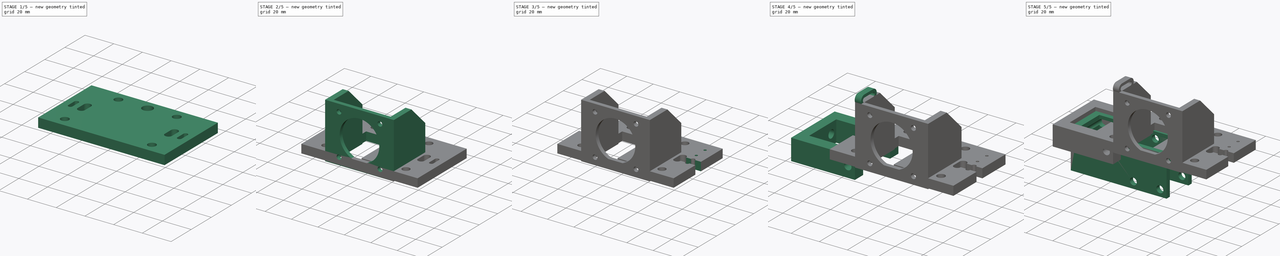
[diagram: build sequence overview — one tinted view per stage of 5, left to right]
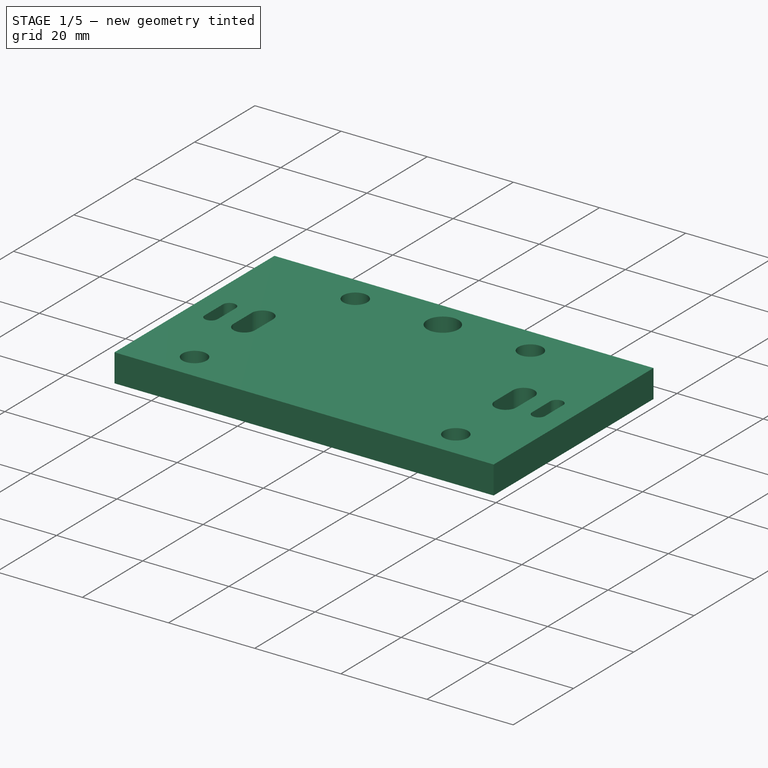
[diagram: stage 1 of 5 — iso view after this stage's code; geometry added in this stage tinted green]
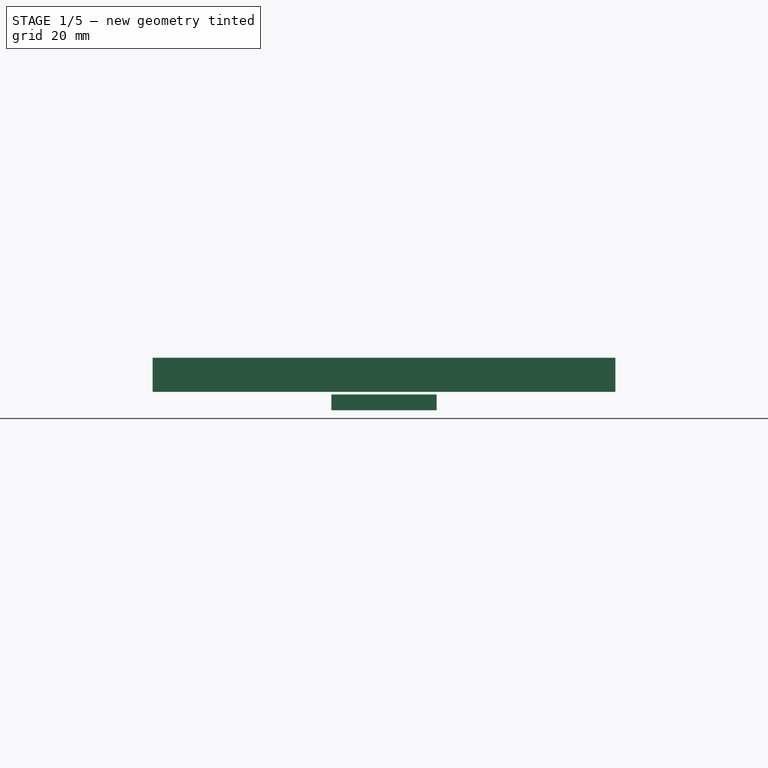
[diagram: stage 1 of 5 — front view after this stage's code; geometry added in this stage tinted green]
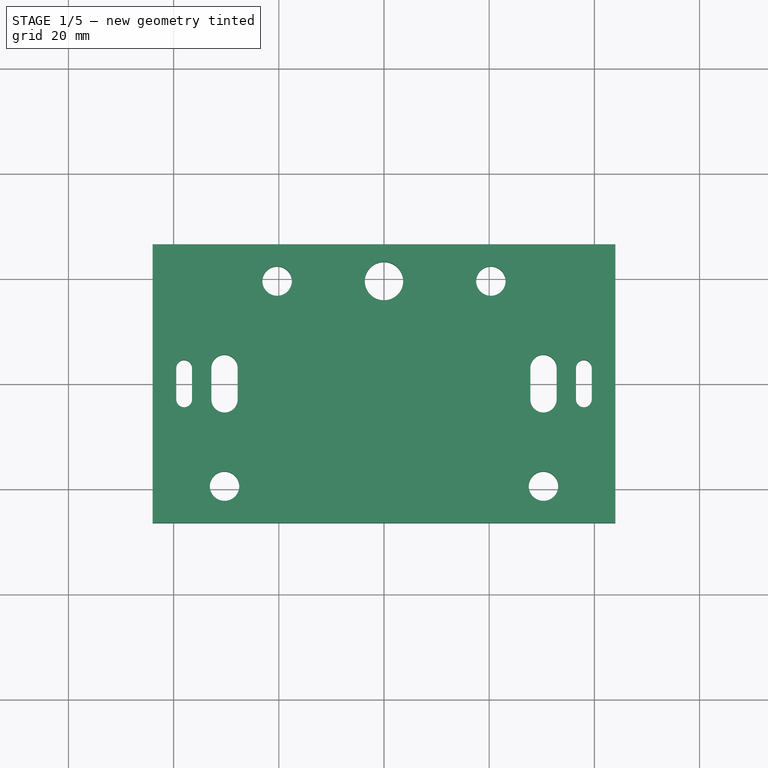
[diagram: stage 1 of 5 — top view after this stage's code; geometry added in this stage tinted green]
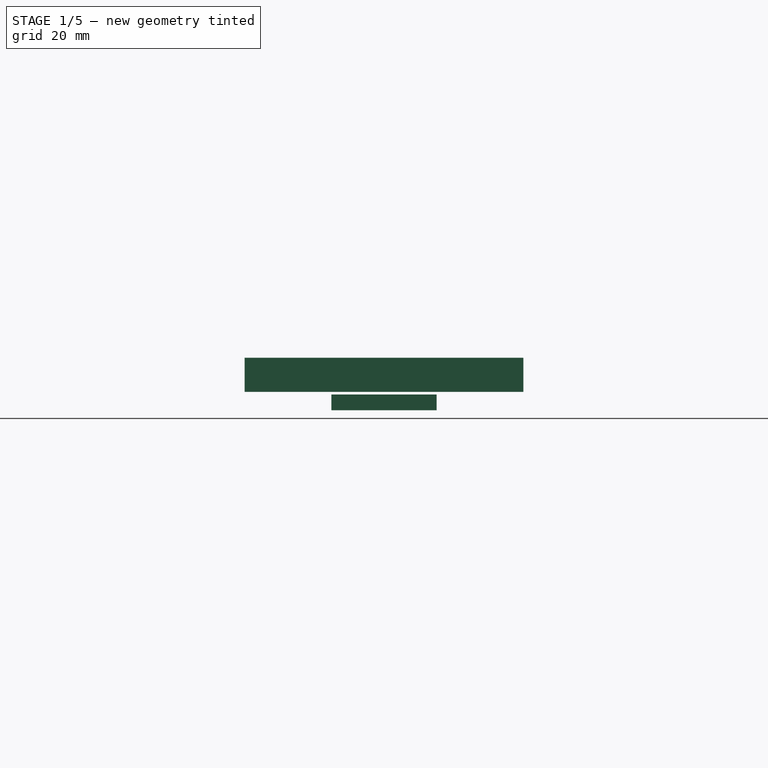
[diagram: stage 1 of 5 — right view after this stage's code; geometry added in this stage tinted green]
FCSTD DOCUMENT  (FreeCAD 0.20R25747 (Git))
Label: alt-x
License: All rights reserved
LicenseURL: http://en.wikipedia.org/wiki/All_rights_reserved
objects: Sketcher::SketchObject×16, PartDesign::Pad×6, PartDesign::Pocket×5, PartDesign::Hole×4, PartDesign::Body×4, App::Part×3, PartDesign::Chamfer×2
note: 54 computed .brp shape members not serialized (recipe doc carries the construction recipe); baked Part::Feature solids carry a one-line shape summary decoded from their .brp

FEATURE [Sketcher::SketchObject] Sketch  label="main_profile"
  AttachmentOffset = pos=(0,0,3.5) rot=(0,0,1;0rad)
  FullyConstrained = true
  MapMode = 5
  Placement = pos=(0,0,3.5) rot=(0,0,1;0rad)
  Support = -> [XY_Plane]
  sketch-geometry (26):
    g0: LineSegment StartX=44 StartY=-26.5 StartZ=0 EndX=-44 EndY=-26.5 EndZ=0
    g1: LineSegment StartX=-44 StartY=-26.5 StartZ=0 EndX=-44 EndY=26.5 EndZ=0
    g2: LineSegment StartX=-44 StartY=26.5 StartZ=0 EndX=44 EndY=26.5 EndZ=0
    g3: Circle CenterX=20.32 CenterY=19.5 CenterZ=0 NormalX=0 NormalY=0 NormalZ=1 AngleXU=0 Radius=2.8
    g4: Circle CenterX=-30.32 CenterY=-19.5 CenterZ=0 NormalX=0 NormalY=0 NormalZ=1 AngleXU=0 Radius=2.8
    g5: Circle CenterX=30.32 CenterY=-19.5 CenterZ=0 NormalX=0 NormalY=0 NormalZ=1 AngleXU=0 Radius=2.8
    g6: ArcOfCircle CenterX=-38 CenterY=3 CenterZ=0 NormalX=0 NormalY=0 NormalZ=1 AngleXU=0 Radius=1.5 StartAngle=0 EndAngle=3.14159
    g7: ArcOfCircle CenterX=-38 CenterY=-3 CenterZ=0 NormalX=0 NormalY=0 NormalZ=1 AngleXU=0 Radius=1.5 StartAngle=3.14159 EndAngle=6.28319
    g8: LineSegment StartX=-39.5 StartY=3 StartZ=0 EndX=-39.5 EndY=-3 EndZ=0
    g9: LineSegment StartX=-36.5 StartY=-3 StartZ=0 EndX=-36.5 EndY=3 EndZ=0
    g10: ArcOfCircle CenterX=38 CenterY=3 CenterZ=0 NormalX=0 NormalY=0 NormalZ=1 AngleXU=0 Radius=1.5 StartAngle=0 EndAngle=3.14159
    g11: ArcOfCircle CenterX=38 CenterY=-3 CenterZ=0 NormalX=0 NormalY=0 NormalZ=1 AngleXU=0 Radius=1.5 StartAngle=3.14159 EndAngle=6.28319
    g12: LineSegment StartX=36.5 StartY=3 StartZ=0 EndX=36.5 EndY=-3 EndZ=0
    g13: LineSegment StartX=39.5 StartY=-3 StartZ=0 EndX=39.5 EndY=3 EndZ=0
    g14: GeomPoint X=30.32 Y=19.5 Z=0
    g15: Circle CenterX=-20.32 CenterY=19.5 CenterZ=0 NormalX=0 NormalY=0 NormalZ=1 AngleXU=0 Radius=2.8
    g16: ArcOfCircle CenterX=-30.32 CenterY=3 CenterZ=0 NormalX=0 NormalY=0 NormalZ=1 AngleXU=0 Radius=2.5 StartAngle=1e-16 EndAngle=3.14159
    g17: ArcOfCircle CenterX=-30.32 CenterY=-3 CenterZ=0 NormalX=0 NormalY=0 NormalZ=1 AngleXU=0 Radius=2.5 StartAngle=3.14159 EndAngle=6.28319
    g18: LineSegment StartX=-32.82 StartY=3 StartZ=0 EndX=-32.82 EndY=-3 EndZ=0
    g19: LineSegment StartX=-27.82 StartY=-3 StartZ=0 EndX=-27.82 EndY=3 EndZ=0
    g20: ArcOfCircle CenterX=30.32 CenterY=3 CenterZ=0 NormalX=0 NormalY=0 NormalZ=1 AngleXU=0 Radius=2.5 StartAngle=0 EndAngle=3.14159
    g21: ArcOfCircle CenterX=30.32 CenterY=-3 CenterZ=0 NormalX=0 NormalY=0 NormalZ=1 AngleXU=0 Radius=2.5 StartAngle=3.14159 EndAngle=6.28319
    g22: LineSegment StartX=27.82 StartY=3 StartZ=0 EndX=27.82 EndY=-3 EndZ=0
    g23: LineSegment StartX=32.82 StartY=-3 StartZ=0 EndX=32.82 EndY=3 EndZ=0
    g24: Circle CenterX=0 CenterY=19.5 CenterZ=0 NormalX=0 NormalY=0 NormalZ=1 AngleXU=0 Radius=3.65
    g25: LineSegment StartX=44 StartY=26.5 StartZ=0 EndX=44 EndY=-26.5 EndZ=0
  constraints (60):
    c: Coincident(g0,g1)
    c: Coincident(g1,g2)
    c: Horizontal(g0)
    c: Symmetric(g2,g1,g-2)
    c: Symmetric(g0,g1,g-1)
    c: DistanceX(g0,g0) = 88
    c: Equal(g4,g5)
    c: Diameter(g4) = 5.6
    c: DistanceY(g1,g1) = 53
    c: DistanceY(g5,g3) = 39
    c: Tangent(g6,g8) = -1.5708
    c: Tangent(g8,g7) = -1.5708
    c: Tangent(g7,g9) = -1.5708
    c: Tangent(g9,g6) = -1.5708
    c: Equal(g6,g7)
    c: Tangent(g10,g12) = -1.5708
    c: Tangent(g12,g11) = -1.5708
    c: Tangent(g11,g13) = -1.5708
    c: Tangent(g13,g10) = -1.5708
    c: Equal(g10,g11)
    c: Symmetric(g10,g11,g-1)
    c: DistanceY(g11,g10) = 6
    c: Symmetric(g6,g7,g-1)
    c: DistanceX(g6,g6) = 3
    c: DistanceX(g10,g10) = 3  'slot_diam'
    c: Symmetric(g5,g14,g-1)
    c: Horizontal(g3,g14)
    c: Symmetric(g5,g4,g-2)
    c: Symmetric(g15,g3,g-2)
    c: Equal(g15,g3)
    c: DistanceX(g15,g3) = 40.64
    c: Tangent(g16,g18) = -1.5708
    c: Tangent(g18,g17) = -1.5708
    c: Tangent(g17,g19) = -1.5708
    c: Tangent(g19,g16) = -1.5708
    c: Equal(g16,g17)
    c: Tangent(g20,g22) = -1.5708
    c: Tangent(g22,g21) = -1.5708
    c: Tangent(g21,g23) = -1.5708
    c: Tangent(g23,g20) = -1.5708
    c: Horizontal(g16,g6)
    c: Symmetric(g16,g20,g-2)
    c: Vertical(g20,g21)
    c: Equal(g12,g23)
    c: Equal(g23,g19)
    c: Equal(g20,g21)
    c: Symmetric(g6,g10,g-2)
    c: Vertical(g16,g17)
    c: Horizontal(g24,g15)
    c: PointOnObject(g24,g-2)
    c: DistanceX(g4,g5) = 60.64
    c: Equal(g4,g15)
    c: Diameter(g24) = 7.3
    c: DistanceX(g20,g10) = 3.68
    c: DistanceX(g20,g20) = 5
    c: DistanceX(g17,g17) = 5
    c: DistanceX(g16,g20) = 60.64
    c: Coincident(g0,g25)
    c: Coincident(g2,g25)
    c: Vertical(g25)
FEATURE [PartDesign::Pad] Pad
  Direction = (0,0,1)
  Length = 6.5
  Length2 = 100
  Profile = -> Sketch
  Type = 0
FEATURE [PartDesign::Body] Body
  Group = -> [Sketch,Pad,Sketch001,Pad001,Sketch002,Pocket,Chamfer001,Sketch003,Hole,Sketch004,Pocket001,Chamfer003,Sketch012,Hole002,Sketch013,Pad004]
  Origin = -> Origin
  Tip = -> Pad004
FEATURE [App::Part] Part  label="carriage"
  Group = -> [Body]
  Origin = -> Origin001
FEATURE [Sketcher::SketchObject] Sketch016
  FullyConstrained = true
  MapMode = 5
  Support = -> [XY_Plane008]
  sketch-geometry (5):
    g0: LineSegment StartX=10 StartY=-10 StartZ=0 EndX=-10 EndY=-10 EndZ=0
    g1: LineSegment StartX=-10 StartY=-10 StartZ=0 EndX=-10 EndY=10 EndZ=0
    g2: LineSegment StartX=-10 StartY=10 StartZ=0 EndX=10 EndY=10 EndZ=0
    g3: LineSegment StartX=10 StartY=10 StartZ=0 EndX=10 EndY=-10 EndZ=0
    g4: Circle CenterX=0 CenterY=0 CenterZ=0 NormalX=0 NormalY=0 NormalZ=1 AngleXU=0 Radius=2.6
  constraints (12):
    c: Coincident(g0,g1)
    c: Coincident(g1,g2)
    c: Coincident(g2,g3)
    c: Coincident(g3,g0)
    c: Horizontal(g0)
    c: Vertical(g1)
    c: Coincident(g4,g-1)
    c: Diameter(g4) = 5.2
    c: Symmetric(g0,g2,g-1)
    c: Symmetric(g1,g2,g-2)
    c: DistanceX(g2,g2) = 20
    c: DistanceY(g3,g3) = 20
FEATURE [PartDesign::Pad] Pad006
  Direction = (0,0,1)
  Length = 3
  Length2 = 100
  Profile = -> Sketch016
  Type = 0
FEATURE [Sketcher::SketchObject] Sketch017
  ExternalGeometry = -> [Pad006]
  FullyConstrained = false
  MapMode = 5
  Support = -> [XY_Plane008]
  sketch-geometry (3):
    g0: Circle CenterX=4.75 CenterY=5 CenterZ=0 NormalX=0 NormalY=0 NormalZ=1 AngleXU=0 Radius=0.9
    g1: Circle CenterX=-4.75 CenterY=5 CenterZ=0 NormalX=0 NormalY=0 NormalZ=1 AngleXU=0 Radius=0.9
    g2: LineSegment StartX=15.5176 StartY=26.4222 StartZ=0 EndX=5.3176 EndY=26.4222 EndZ=0
  constraints (7):
    c: Diameter(g1) = 1.8
    c: Equal(g0,g1)
    c: Horizontal(g2)
    c: DistanceX(g2,g2) = 10.2
    c: Distance(g1,g0) = 9.5
    c: Symmetric(g0,g1,g-2)
    c: DistanceY(g0,g-3) = 5
FEATURE [PartDesign::Hole] Hole004
  BaseFeature = -> Pad006
  CustomThreadClearance = 0
  Depth = 25
  DepthType = 1
  Diameter = 2.1
  DrillForDepth = false
  DrillPoint = 1
  DrillPointAngle = 118
  HoleCutCountersinkAngle = 90
  HoleCutCustomValues = false
  HoleCutDepth = 0
  HoleCutDiameter = 6.1
  HoleCutType = 0
  ModelThread = false
  Profile = -> Sketch017
  Reversed = true
  Tapered = false
  TaperedAngle = 90
  ThreadClass = 0
  ThreadDepth = 57.4547
  ThreadDepthType = 0
  ThreadDirection = 0
  ThreadFit = 0
  ThreadSize = 5
  ThreadType = 1
  Threaded = false
  UseCustomThreadClearance = false
FEATURE [PartDesign::Body] Body004  label="endstop"
  Group = -> [Sketch016,Sketch017,Pad006,Hole004]
  Origin = -> Origin008
  Tip = -> Hole004
FEATURE [App::Part] Part003  label="z-endstop"
  Group = -> [Body004]
  Origin = -> Origin007
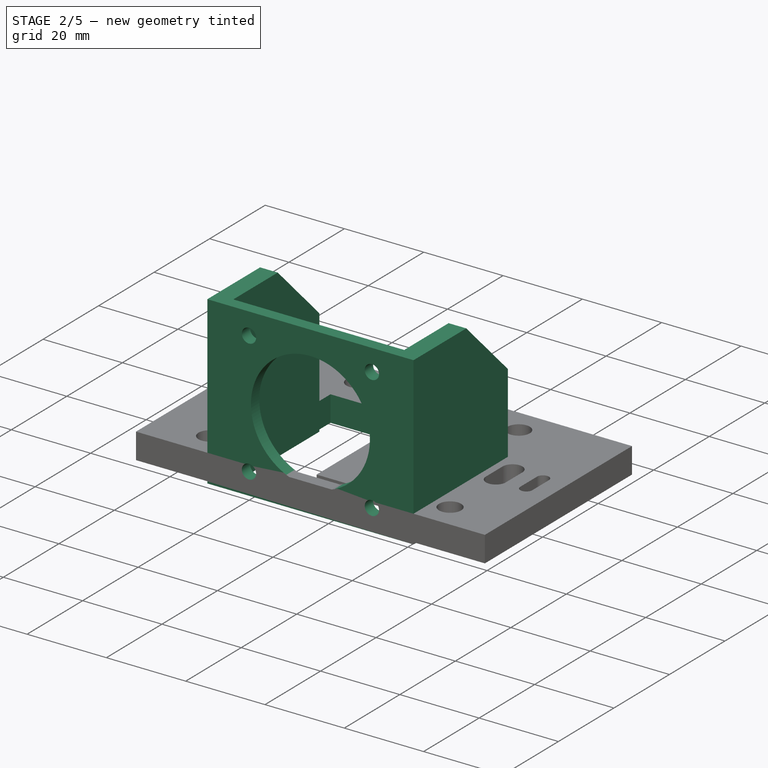
[diagram: stage 2 of 5 — iso view after this stage's code; geometry added in this stage tinted green]
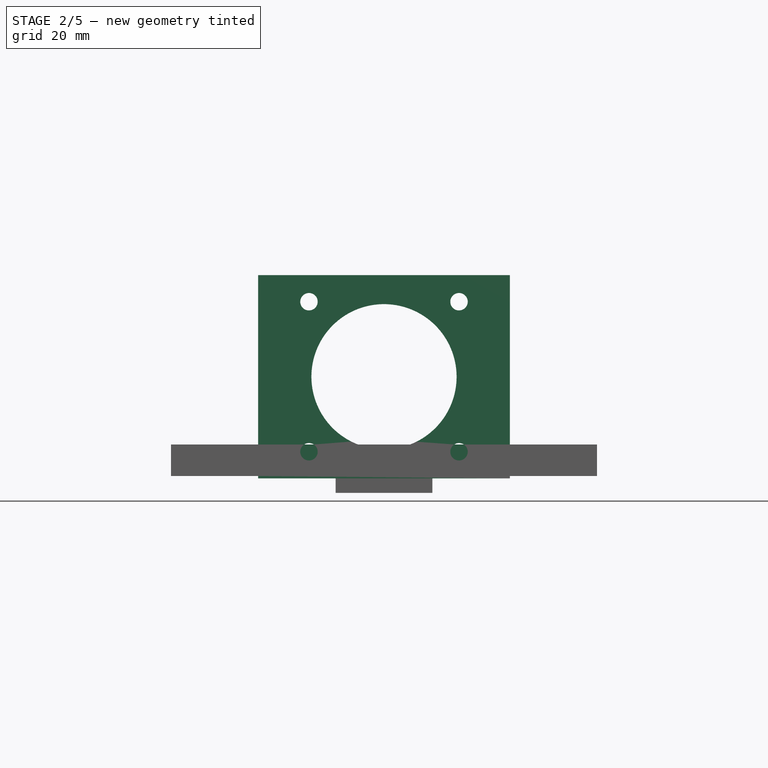
[diagram: stage 2 of 5 — front view after this stage's code; geometry added in this stage tinted green]
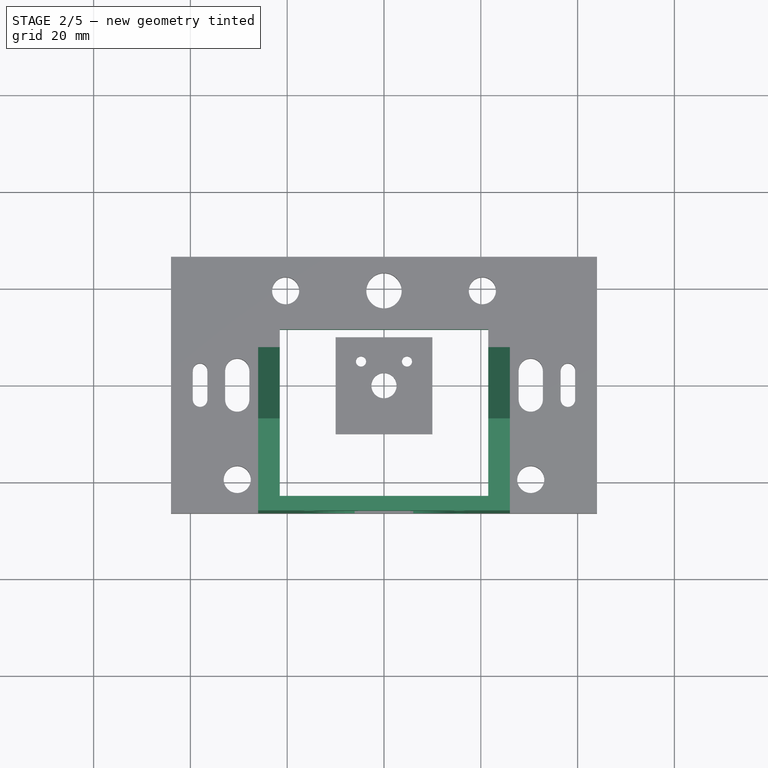
[diagram: stage 2 of 5 — top view after this stage's code; geometry added in this stage tinted green]
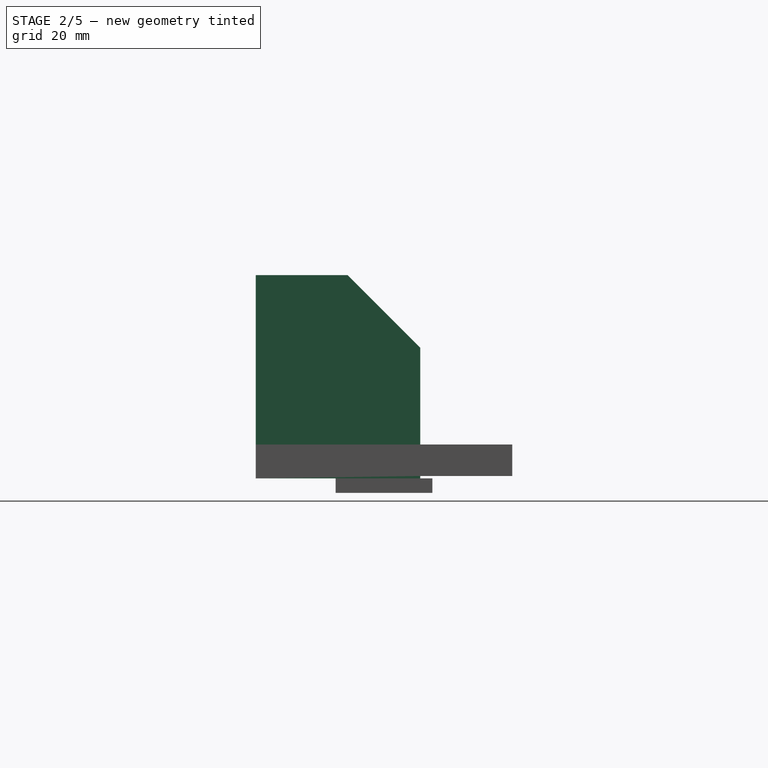
[diagram: stage 2 of 5 — right view after this stage's code; geometry added in this stage tinted green]
FEATURE [Sketcher::SketchObject] Sketch001  label="motor_mount"
  AttachmentOffset = pos=(0,24,26.5) rot=(0,0,1;0rad)
  FullyConstrained = true
  MapMode = 5
  Placement = pos=(0,-26.5,24) rot=(1,0,0;1.5708rad)
  Support = -> [XZ_Plane]
  sketch-geometry (9):
    g0: LineSegment StartX=-26 StartY=-21 StartZ=0 EndX=26 EndY=-21 EndZ=0
    g1: LineSegment StartX=26 StartY=-21 StartZ=0 EndX=26 EndY=21 EndZ=0
    g2: LineSegment StartX=26 StartY=21 StartZ=0 EndX=-26 EndY=21 EndZ=0
    g3: LineSegment StartX=-26 StartY=21 StartZ=0 EndX=-26 EndY=-21 EndZ=0
    g4: Circle CenterX=0 CenterY=0 CenterZ=0 NormalX=0 NormalY=0 NormalZ=1 AngleXU=0 Radius=15
    g5: Circle CenterX=-15.5 CenterY=15.5 CenterZ=0 NormalX=0 NormalY=0 NormalZ=1 AngleXU=0 Radius=1.75
    g6: Circle CenterX=-15.5 CenterY=-15.5 CenterZ=0 NormalX=0 NormalY=0 NormalZ=1 AngleXU=0 Radius=1.75
    g7: Circle CenterX=15.5 CenterY=-15.5 CenterZ=0 NormalX=0 NormalY=0 NormalZ=1 AngleXU=0 Radius=1.75
    g8: Circle CenterX=15.5 CenterY=15.5 CenterZ=0 NormalX=0 NormalY=0 NormalZ=1 AngleXU=0 Radius=1.75
  constraints (21):
    c: Coincident(g0,g1)
    c: Coincident(g1,g2)
    c: Coincident(g2,g3)
    c: Coincident(g3,g0)
    c: Horizontal(g0)
    c: Vertical(g1)
    c: DistanceX(g2,g2) = 52
    c: DistanceY(g1,g1) = 42
    c: Symmetric(g2,g0,g-1)
    c: Symmetric(g2,g1,g-2)
    c: Coincident(g4,g-1)
    c: Diameter(g4) = 30
    c: Symmetric(g8,g7,g-1)
    c: Symmetric(g8,g5,g-2)
    c: Diameter(g8) = 3.5
    c: Equal(g8,g5)
    c: Equal(g5,g6)
    c: Equal(g6,g7)
    c: Symmetric(g5,g6,g-1)
    c: DistanceY(g6,g5) = 31
    c: DistanceX(g6,g7) = 31
FEATURE [PartDesign::Pad] Pad001
  BaseFeature = -> Pad
  Direction = (0,-1,-2e-16)
  Length = 34
  Length2 = 100
  Profile = -> Sketch001
  Reversed = true
  Type = 0
FEATURE [Sketcher::SketchObject] Sketch002  label="motor_pocket"
  AttachmentOffset = pos=(0,24,23.5) rot=(0,0,1;0rad)
  FullyConstrained = true
  MapMode = 5
  Placement = pos=(0,-23.5,24) rot=(1,0,0;1.5708rad)
  Support = -> [XZ_Plane]
  expr: .AttachmentOffset.Base.y = <<motor_mount>>.AttachmentOffset.Base.y
  expr: .Constraints.motor_dimension = 42.6mm
  expr: .Constraints.motor_width = .Constraints.motor_dimension + 0.5mm
  expr: .AttachmentOffset.Base.z = <<motor_mount>>.AttachmentOffset.Base.z - 3mm
  sketch-geometry (4):
    g0: LineSegment StartX=21.55 StartY=-21.3 StartZ=0 EndX=-21.55 EndY=-21.3 EndZ=0
    g1: LineSegment StartX=-21.55 StartY=-21.3 StartZ=0 EndX=-21.55 EndY=21.3 EndZ=0
    g2: LineSegment StartX=-21.55 StartY=21.3 StartZ=0 EndX=21.55 EndY=21.3 EndZ=0
    g3: LineSegment StartX=21.55 StartY=21.3 StartZ=0 EndX=21.55 EndY=-21.3 EndZ=0
  constraints (10):
    c: Coincident(g0,g1)
    c: Coincident(g1,g2)
    c: Coincident(g2,g3)
    c: Coincident(g3,g0)
    c: Horizontal(g0)
    c: Vertical(g3)
    c: Symmetric(g2,g1,g-2)
    c: Symmetric(g1,g0,g-1)
    c: DistanceX(g2,g2) = 43.1  'motor_width'
    c: DistanceY(g1,g1) = 42.6  'motor_dimension'
FEATURE [PartDesign::Pocket] Pocket
  BaseFeature = -> Pad001
  Length = 35
  Length2 = 100
  Profile = -> Sketch002
  Type = 0
FEATURE [PartDesign::Chamfer] Chamfer001
  Angle = 45
  Base = -> Pocket [Edge139,Edge140]
  BaseFeature = -> Pocket
  ChamferType = 0
  FlipDirection = false
  Size = 15
  Size2 = 1
  SupportTransform = false
FEATURE [Sketcher::SketchObject] Sketch003  label="motor_mount001"
  AttachmentOffset = pos=(0,24,26.5) rot=(0,0,1;0rad)
  FullyConstrained = true
  MapMode = 5
  Placement = pos=(0,-26.5,24) rot=(1,0,0;1.5708rad)
  Support = -> [XZ_Plane]
  sketch-geometry (9):
    g0: LineSegment StartX=-27 StartY=-21 StartZ=0 EndX=27 EndY=-21 EndZ=0
    g1: LineSegment StartX=27 StartY=-21 StartZ=0 EndX=27 EndY=21 EndZ=0
    g2: LineSegment StartX=27 StartY=21 StartZ=0 EndX=-27 EndY=21 EndZ=0
    g3: LineSegment StartX=-27 StartY=21 StartZ=0 EndX=-27 EndY=-21 EndZ=0
    g4: Circle CenterX=0 CenterY=0 CenterZ=0 NormalX=0 NormalY=0 NormalZ=1 AngleXU=0 Radius=15
    g5: Circle CenterX=-15.5 CenterY=15.5 CenterZ=0 NormalX=0 NormalY=0 NormalZ=1 AngleXU=0 Radius=1.75
    g6: Circle CenterX=-15.5 CenterY=-15.5 CenterZ=0 NormalX=0 NormalY=0 NormalZ=1 AngleXU=0 Radius=1.75
    g7: Circle CenterX=15.5 CenterY=-15.5 CenterZ=0 NormalX=0 NormalY=0 NormalZ=1 AngleXU=0 Radius=1.75
    g8: Circle CenterX=15.5 CenterY=15.5 CenterZ=0 NormalX=0 NormalY=0 NormalZ=1 AngleXU=0 Radius=1.75
  constraints (21):
    c: Coincident(g0,g1)
    c: Coincident(g1,g2)
    c: Coincident(g2,g3)
    c: Coincident(g3,g0)
    c: Horizontal(g0)
    c: Vertical(g1)
    c: DistanceX(g2,g2) = 54
    c: DistanceY(g1,g1) = 42
    c: Symmetric(g2,g0,g-1)
    c: Symmetric(g2,g1,g-2)
    c: Coincident(g4,g-1)
    c: Diameter(g4) = 30
    c: Symmetric(g8,g7,g-1)
    c: Symmetric(g8,g5,g-2)
    c: Diameter(g8) = 3.5
    c: Equal(g8,g5)
    c: Equal(g5,g6)
    c: Equal(g6,g7)
    c: Symmetric(g5,g6,g-1)
    c: DistanceY(g6,g5) = 31
    c: DistanceX(g6,g7) = 31
FEATURE [PartDesign::Hole] Hole
  BaseFeature = -> Chamfer001
  CustomThreadClearance = 0
  Depth = 25
  DepthType = 0
  Diameter = 3.6
  DrillForDepth = false
  DrillPoint = 1
  DrillPointAngle = 118
  HoleCutCountersinkAngle = 90
  HoleCutCustomValues = false
  HoleCutDepth = 0
  HoleCutDiameter = 6.1
  HoleCutType = 0
  ModelThread = false
  Profile = -> Sketch003
  Tapered = false
  TaperedAngle = 90
  ThreadClass = 0
  ThreadDepth = 25
  ThreadDepthType = 0
  ThreadDirection = 0
  ThreadFit = 2
  ThreadSize = 9
  ThreadType = 2
  Threaded = false
  UseCustomThreadClearance = false
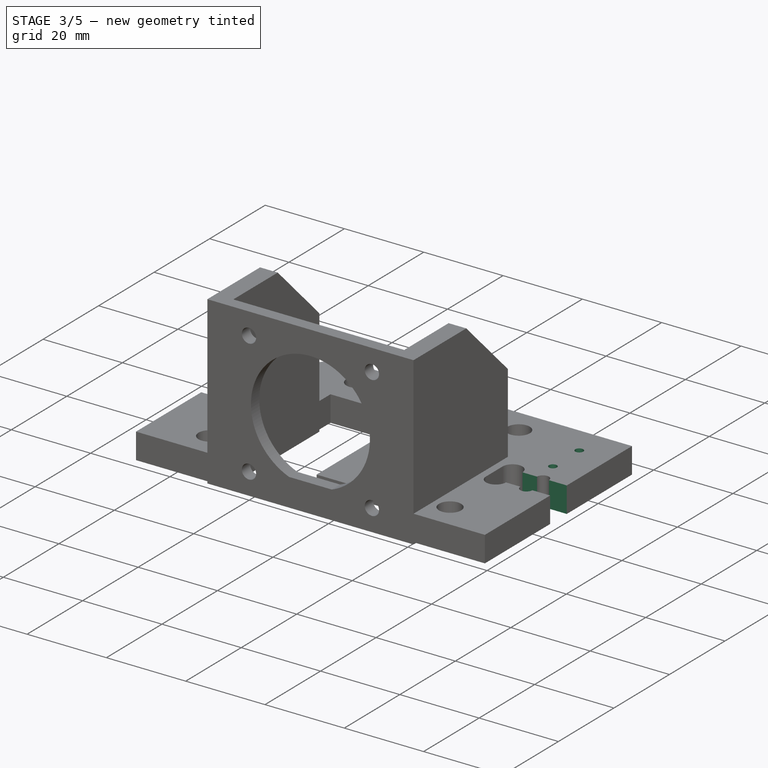
[diagram: stage 3 of 5 — iso view after this stage's code; geometry added in this stage tinted green]
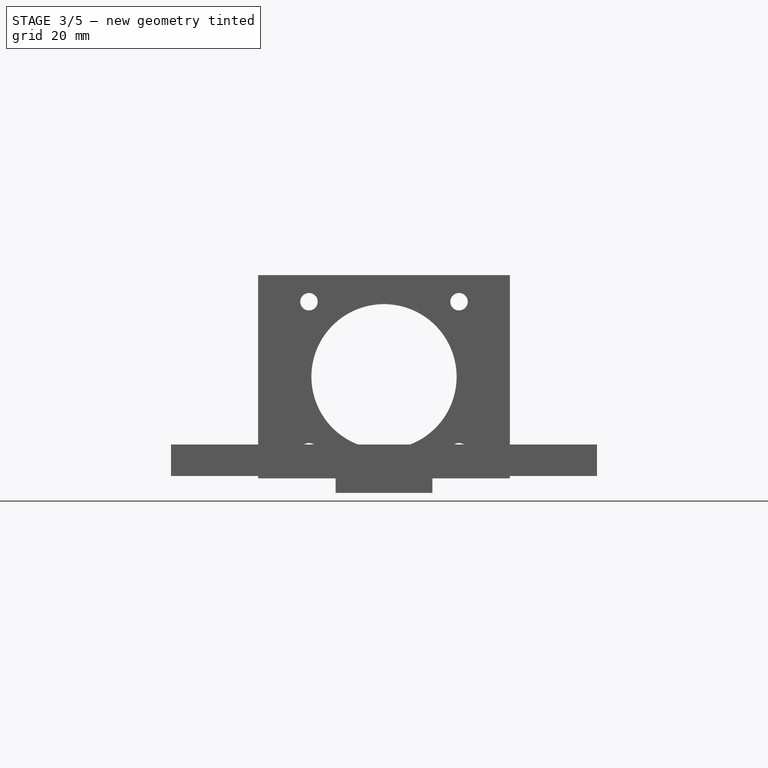
[diagram: stage 3 of 5 — front view after this stage's code; geometry added in this stage tinted green]
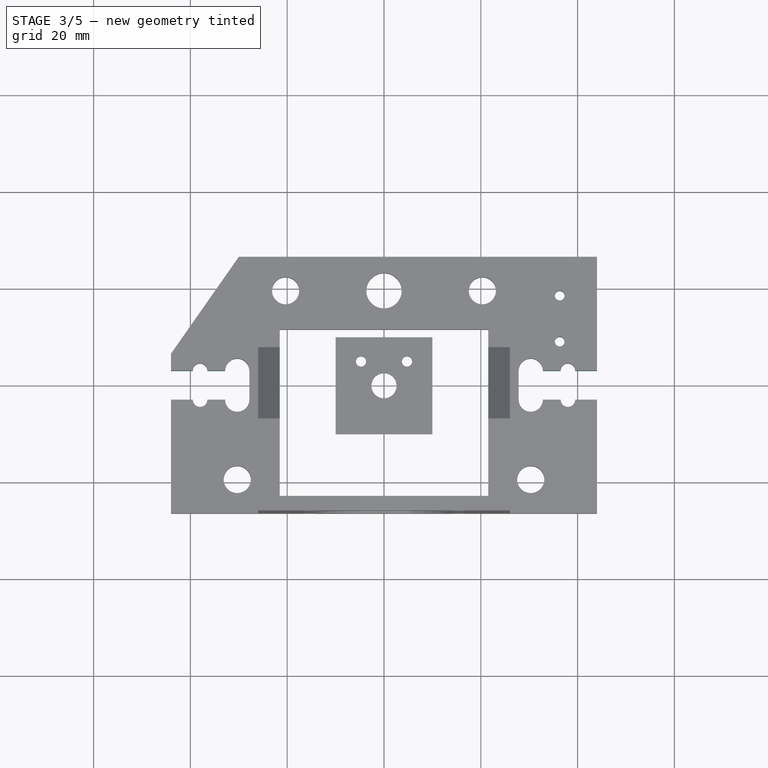
[diagram: stage 3 of 5 — top view after this stage's code; geometry added in this stage tinted green]
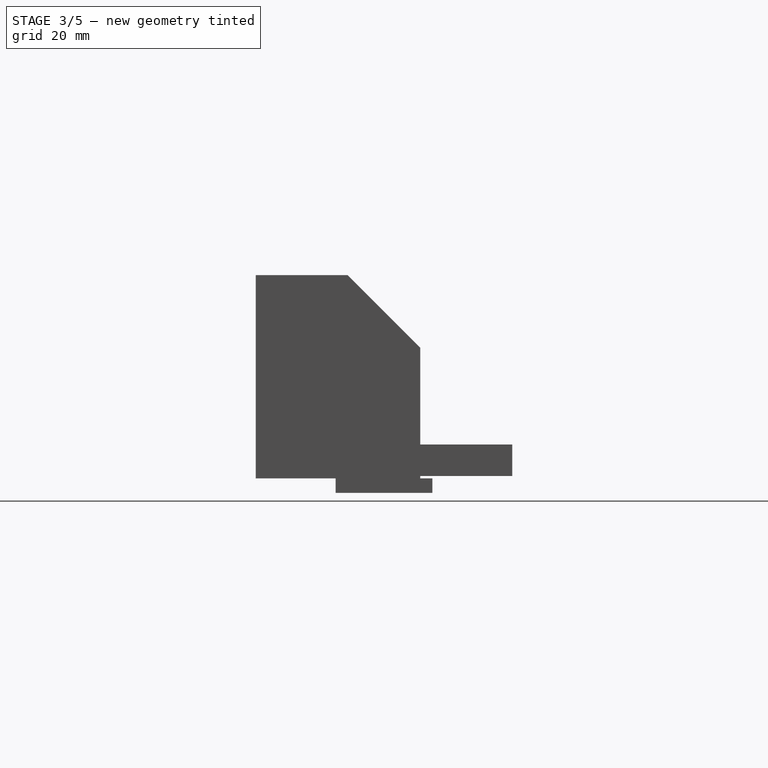
[diagram: stage 3 of 5 — right view after this stage's code; geometry added in this stage tinted green]
FEATURE [Sketcher::SketchObject] Sketch004
  AttachmentOffset = pos=(0,0,11) rot=(0,0,1;0rad)
  FullyConstrained = false
  MapMode = 5
  Placement = pos=(0,0,11) rot=(0,0,1;0rad)
  Support = -> [XY_Plane]
  sketch-geometry (8):
    g0: LineSegment StartX=-44 StartY=3 StartZ=0 EndX=-27.82 EndY=3 EndZ=0
    g1: LineSegment StartX=-27.82 StartY=3 StartZ=0 EndX=-27.82 EndY=-3 EndZ=0
    g2: LineSegment StartX=-27.82 StartY=-3 StartZ=0 EndX=-44 EndY=-3 EndZ=0
    g3: LineSegment StartX=-44 StartY=-3 StartZ=0 EndX=-44 EndY=3 EndZ=0
    g4: LineSegment StartX=27.82 StartY=3 StartZ=0 EndX=44 EndY=3 EndZ=0
    g5: LineSegment StartX=44 StartY=3 StartZ=0 EndX=44 EndY=-3 EndZ=0
    g6: LineSegment StartX=44 StartY=-3 StartZ=0 EndX=27.82 EndY=-3 EndZ=0
    g7: LineSegment StartX=27.82 StartY=-3 StartZ=0 EndX=27.82 EndY=3 EndZ=0
  constraints (14):
    c: Coincident(g4,g7)
    c: Coincident(g6,g7)
    c: Horizontal(g4)
    c: Horizontal(g6)
    c: Coincident(g5,g6)
    c: Vertical(g5)
    c: Coincident(g4,g5)
    c: Coincident(g1,g2)
    c: Coincident(g0,g1)
    c: Coincident(g0,g3)
    c: Coincident(g2,g3)
    c: Vertical(g3)
    c: Horizontal(g0)
    c: Horizontal(g2)
FEATURE [PartDesign::Pocket] Pocket001
  BaseFeature = -> Hole
  Length = 10
  Length2 = 100
  Profile = -> Sketch004
  Type = 1
FEATURE [PartDesign::Chamfer] Chamfer003
  Angle = 45
  Base = -> Pocket001 [Edge143]
  BaseFeature = -> Pocket001
  ChamferType = 1
  FlipDirection = false
  Size = 20
  Size2 = 14
  SupportTransform = false
FEATURE [Sketcher::SketchObject] Sketch011
  FullyConstrained = true
  MapMode = 5
  Support = -> [XY_Plane004]
FEATURE [PartDesign::Body] Body002  label="arm"
  Group = -> [Sketch007,Pad003,Sketch008,Pocket003,Sketch009,Hole001,Sketch010,Pocket004,Sketch011]
  Origin = -> Origin004
  Tip = -> Pocket004
FEATURE [App::Part] Part001  label="end-tensioner"
  Group = -> [Body001,Body002]
  Origin = -> Origin002
FEATURE [Sketcher::SketchObject] Sketch012
  ExternalGeometry = -> [Chamfer003]
  FullyConstrained = true
  MapMode = 5
  Support = -> [XY_Plane]
  sketch-geometry (7):
    g0: LineSegment StartX=44 StartY=3.9 StartZ=0 EndX=33.8 EndY=3.9 EndZ=0
    g1: LineSegment StartX=33.8 StartY=3.9 StartZ=0 EndX=33.8 EndY=23.7 EndZ=0
    g2: LineSegment StartX=33.8 StartY=23.7 StartZ=0 EndX=44 EndY=23.7 EndZ=0
    g3: LineSegment StartX=44 StartY=23.7 StartZ=0 EndX=44 EndY=3.9 EndZ=0
    g4: Circle CenterX=36.3 CenterY=9 CenterZ=0 NormalX=0 NormalY=0 NormalZ=1 AngleXU=0 Radius=0.9
    g5: Circle CenterX=36.3 CenterY=18.5 CenterZ=0 NormalX=0 NormalY=0 NormalZ=1 AngleXU=0 Radius=0.9
    g6: GeomPoint X=44 Y=11 Z=0
  constraints (20):
    c: Coincident(g0,g1)
    c: Coincident(g1,g2)
    c: Coincident(g2,g3)
    c: Coincident(g3,g0)
    c: Horizontal(g0)
    c: Horizontal(g2)
    c: Vertical(g1)
    c: Vertical(g3)
    c: DistanceX(g0,g0) = 10.2
    c: DistanceY(g3,g3) = 19.8
    c: Vertical(g5,g4)
    c: DistanceY(g4,g5) = 9.5
    c: DistanceY(g0,g4) = 5.1
    c: DistanceY(g6,g5) = 7.5
    c: DistanceY(g-1,g6) = 11
    c: Equal(g5,g4)
    c: Diameter(g5) = 1.8
    c: DistanceX(g0,g4) = 2.5
    c: PointOnObject(g6,g3)
    c: PointOnObject(g2,g-3)
FEATURE [PartDesign::Hole] Hole002
  BaseFeature = -> Chamfer003
  CustomThreadClearance = 0
  Depth = 25
  DepthType = 0
  Diameter = 2
  DrillForDepth = false
  DrillPoint = 1
  DrillPointAngle = 118
  HoleCutCountersinkAngle = 90
  HoleCutCustomValues = false
  HoleCutDepth = 0
  HoleCutDiameter = 6.1
  HoleCutType = 0
  ModelThread = false
  Profile = -> Sketch012
  Reversed = true
  Tapered = false
  TaperedAngle = 90
  ThreadClass = 0
  ThreadDepth = 25
  ThreadDepthType = 0
  ThreadDirection = 0
  ThreadFit = 1
  ThreadSize = 5
  ThreadType = 2
  Threaded = false
  UseCustomThreadClearance = false
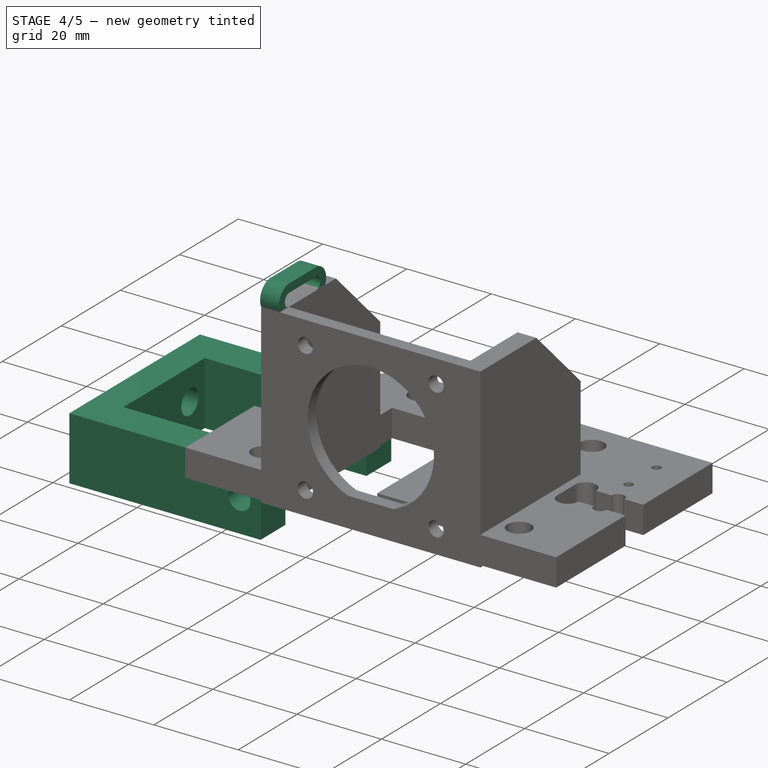
[diagram: stage 4 of 5 — iso view after this stage's code; geometry added in this stage tinted green]
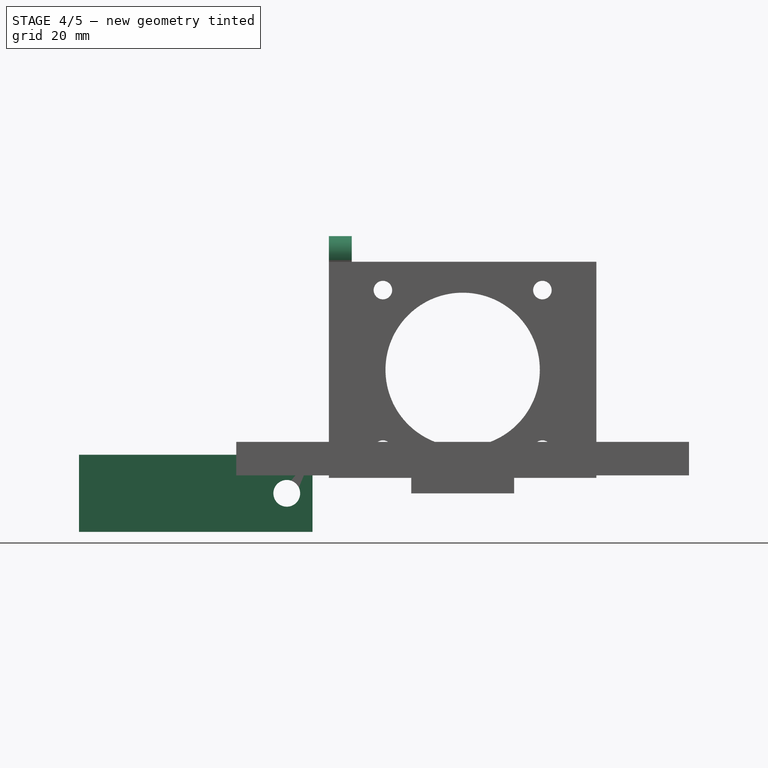
[diagram: stage 4 of 5 — front view after this stage's code; geometry added in this stage tinted green]
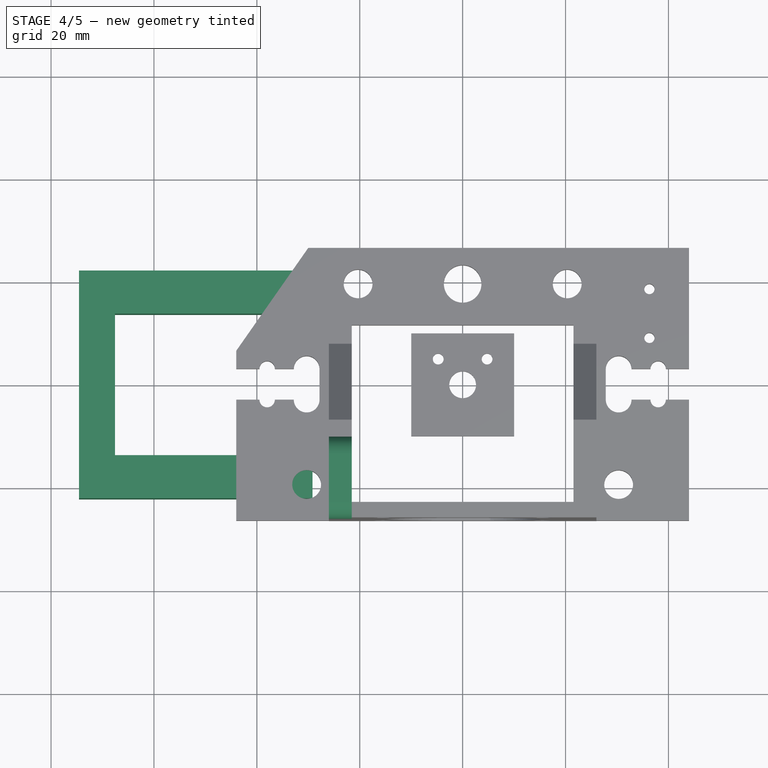
[diagram: stage 4 of 5 — top view after this stage's code; geometry added in this stage tinted green]
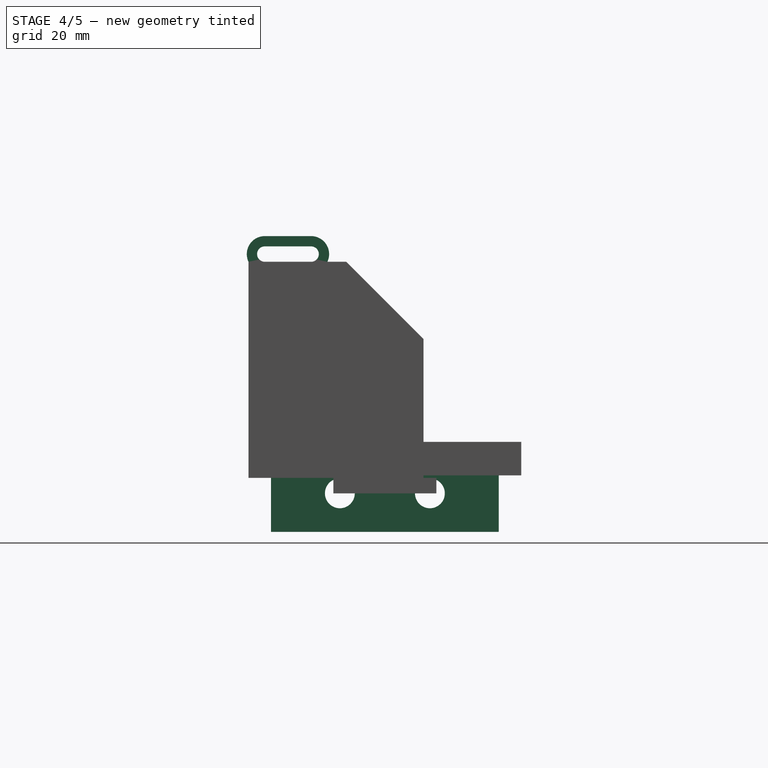
[diagram: stage 4 of 5 — right view after this stage's code; geometry added in this stage tinted green]
FEATURE [PartDesign::Body] Body001
  Group = -> [Sketch005,Pad002,Sketch006,Pocket002]
  Origin = -> Origin003
  Tip = -> Pocket002
FEATURE [Sketcher::SketchObject] Sketch007
  FullyConstrained = false
  MapMode = 5
  Support = -> [XY_Plane004]
  sketch-geometry (8):
    g0: LineSegment StartX=-29.1868 StartY=13.75 StartZ=0 EndX=-29.1868 EndY=22.1314 EndZ=0
    g1: LineSegment StartX=-29.1868 StartY=22.1314 StartZ=0 EndX=-74.5732 EndY=22.1314 EndZ=0
    g2: LineSegment StartX=-74.5732 StartY=22.1314 StartZ=0 EndX=-74.5732 EndY=-22.1314 EndZ=0
    g3: LineSegment StartX=-74.5732 StartY=-22.1314 StartZ=0 EndX=-29.1868 EndY=-22.1314 EndZ=0
    g4: LineSegment StartX=-29.1868 StartY=-22.1314 StartZ=0 EndX=-29.1868 EndY=-13.75 EndZ=0
    g5: LineSegment StartX=-29.1868 StartY=-13.75 StartZ=0 EndX=-67.5732 EndY=-13.75 EndZ=0
    g6: LineSegment StartX=-67.5732 StartY=-13.75 StartZ=0 EndX=-67.5732 EndY=13.75 EndZ=0
    g7: LineSegment StartX=-67.5732 StartY=13.75 StartZ=0 EndX=-29.1868 EndY=13.75 EndZ=0
  constraints (19):
    c: Coincident(g0,g1)
    c: Coincident(g1,g2)
    c: Coincident(g2,g3)
    c: Coincident(g3,g4)
    c: Coincident(g4,g5)
    c: Coincident(g5,g6)
    c: Coincident(g6,g7)
    c: Coincident(g7,g0)
    c: Vertical(g4)
    c: Vertical(g0)
    c: Vertical(g2)
    c: Horizontal(g3)
    c: Horizontal(g5)
    c: Horizontal(g7)
    c: Horizontal(g1)
    c: DistanceY(g6,g6) = 27.5
    c: Symmetric(g6,g5,g-1)
    c: Symmetric(g3,g0,g-1)
    c: DistanceX(g1,g6) = 7
FEATURE [PartDesign::Pad] Pad003
  Direction = (0,0,1)
  Length = 15
  Length2 = 100
  Midplane = true
  Profile = -> Sketch007
  Type = 0
FEATURE [Sketcher::SketchObject] Sketch008
  ExternalGeometry = -> [Pad003]
  FullyConstrained = true
  MapMode = 5
  Placement = pos=(0,-22.1314,0) rot=(1,0,0;1.5708rad)
  Support = -> [Pad003]
  sketch-geometry (1):
    g0: Circle CenterX=-34.1868 CenterY=0 CenterZ=0 NormalX=0 NormalY=0 NormalZ=1 AngleXU=0 Radius=2.6
  constraints (3):
    c: Diameter(g0) = 5.2
    c: DistanceX(g0,g-3) = 5
    c: PointOnObject(g0,g-1)
FEATURE [PartDesign::Pocket] Pocket003
  BaseFeature = -> Pad003
  Length = 5
  Length2 = 100
  Profile = -> Sketch008
  Type = 1
FEATURE [Sketcher::SketchObject] Sketch009
  ExternalGeometry = -> [Pocket003]
  FullyConstrained = true
  MapMode = 5
  Placement = pos=(-74.5732,0,0) rot=(0.57735,-0.57735,-0.57735;2.0944rad)
  Support = -> [Pocket003]
  sketch-geometry (2):
    g0: Circle CenterX=8.75 CenterY=0 CenterZ=0 NormalX=0 NormalY=0 NormalZ=1 AngleXU=0 Radius=2.6
    g1: Circle CenterX=-8.75 CenterY=0 CenterZ=0 NormalX=0 NormalY=0 NormalZ=1 AngleXU=0 Radius=2.6
  constraints (5):
    c: Diameter(g0) = 5.2
    c: PointOnObject(g0,g-1)
    c: Symmetric(g1,g0,g-2)
    c: Equal(g0,g1)
    c: DistanceX(g0,g-3) = 5
FEATURE [PartDesign::Hole] Hole001
  BaseFeature = -> Pocket003
  CustomThreadClearance = 0
  Depth = 25
  DepthType = 0
  Diameter = 5.8
  DrillForDepth = false
  DrillPoint = 1
  DrillPointAngle = 118
  HoleCutCountersinkAngle = 90
  HoleCutCustomValues = false
  HoleCutDepth = 0
  HoleCutDiameter = 6.1
  HoleCutType = 0
  ModelThread = false
  Profile = -> Sketch009
  Tapered = false
  TaperedAngle = 90
  ThreadClass = 0
  ThreadDepth = 25
  ThreadDepthType = 0
  ThreadDirection = 0
  ThreadFit = 2
  ThreadSize = 13
  ThreadType = 1
  Threaded = false
  UseCustomThreadClearance = false
FEATURE [Sketcher::SketchObject] Sketch013
  ExternalGeometry = -> [Hole002]
  FullyConstrained = true
  MapMode = 5
  Placement = pos=(-26,0,0) rot=(0.57735,-0.57735,-0.57735;2.0944rad)
  Support = -> [Hole002]
  sketch-geometry (8):
    g0: ArcOfCircle CenterX=14.3377 CenterY=46.5 CenterZ=0 NormalX=0 NormalY=0 NormalZ=1 AngleXU=0 Radius=1.5 StartAngle=1.5708 EndAngle=4.71239
    g1: ArcOfCircle CenterX=23.3377 CenterY=46.5 CenterZ=0 NormalX=0 NormalY=0 NormalZ=1 AngleXU=0 Radius=1.5 StartAngle=4.71239 EndAngle=7.85398
    g2: LineSegment StartX=14.3377 StartY=45 StartZ=0 EndX=23.3377 EndY=45 EndZ=0
    g3: LineSegment StartX=23.3377 StartY=48 StartZ=0 EndX=14.3377 EndY=48 EndZ=0
    g4: ArcOfCircle CenterX=14.3377 CenterY=46.5 CenterZ=0 NormalX=0 NormalY=0 NormalZ=1 AngleXU=0 Radius=3.5 StartAngle=1.5708 EndAngle=4.71239
    g5: ArcOfCircle CenterX=23.3377 CenterY=46.5 CenterZ=0 NormalX=0 NormalY=0 NormalZ=1 AngleXU=0 Radius=3.5 StartAngle=4.71239 EndAngle=7.85398
    g6: LineSegment StartX=14.3377 StartY=43 StartZ=0 EndX=23.3377 EndY=43 EndZ=0
    g7: LineSegment StartX=23.3377 StartY=50 StartZ=0 EndX=14.3377 EndY=50 EndZ=0
  constraints (18):
    c: Tangent(g0,g2) = -1.5708
    c: Tangent(g2,g1) = -1.5708
    c: Tangent(g1,g3) = -1.5708
    c: Tangent(g3,g0) = -1.5708
    c: Equal(g0,g1)
    c: Tangent(g4,g6) = -1.5708
    c: Tangent(g6,g5) = -1.5708
    c: Tangent(g5,g7) = -1.5708
    c: Tangent(g7,g4) = -1.5708
    c: Equal(g4,g5)
    c: Coincident(g5,g1)
    c: Coincident(g0,g4)
    c: DistanceY(g0,g4) = 2
    c: Horizontal(g6)
    c: DistanceX(g0,g1) = 9
    c: DistanceY(g1,g1) = 3
    c: PointOnObject(g-3,g5)
    c: PointOnObject(g0,g-3)
FEATURE [PartDesign::Pad] Pad004
  BaseFeature = -> Hole002
  Direction = (-1,0,0)
  Length = 10
  Length2 = 100
  Profile = -> Sketch013
  Type = 3
  UpToFace = -> Hole002 [Face30]
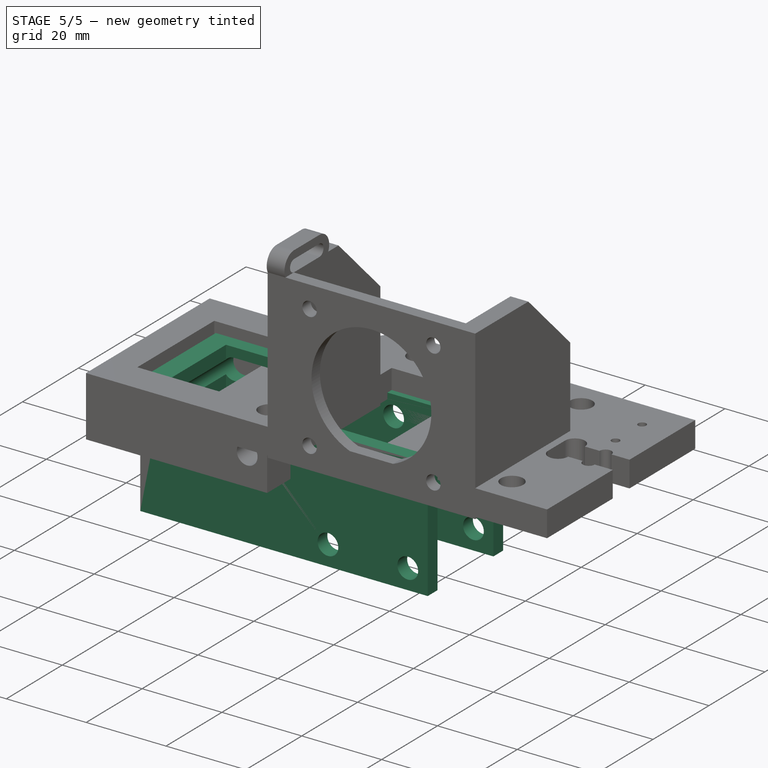
[diagram: stage 5 of 5 — iso view after this stage's code; geometry added in this stage tinted green]
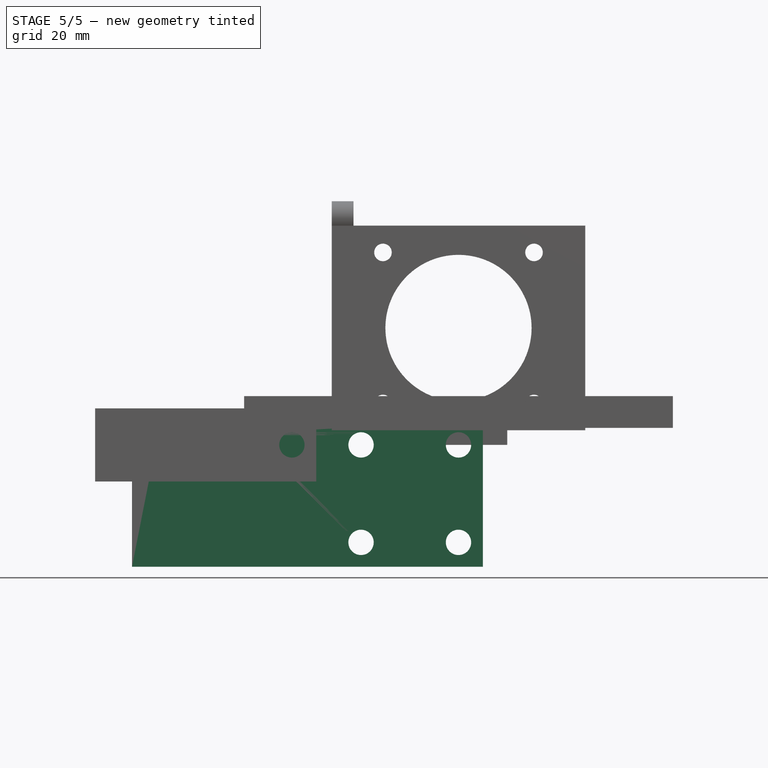
[diagram: stage 5 of 5 — front view after this stage's code; geometry added in this stage tinted green]
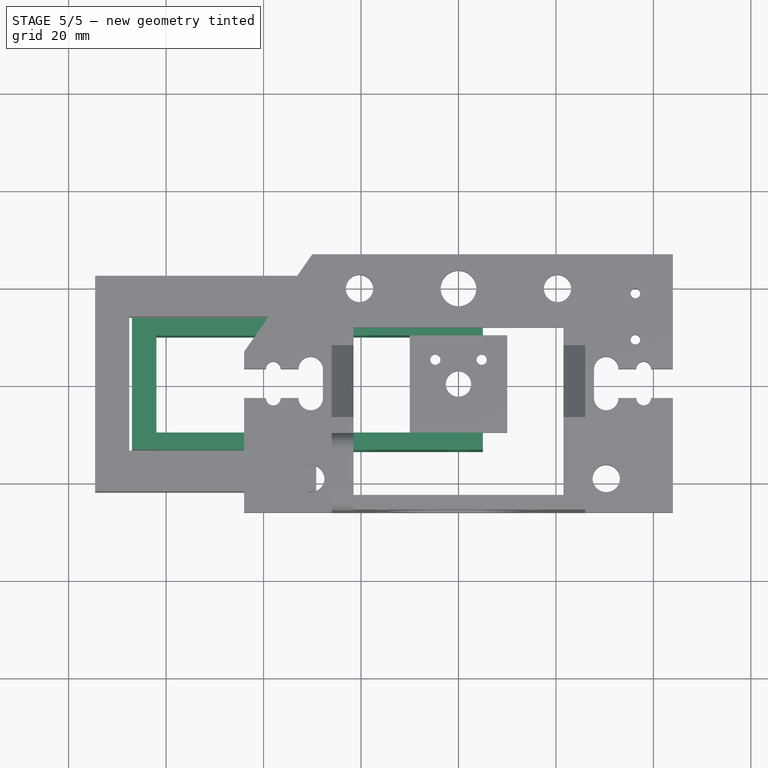
[diagram: stage 5 of 5 — top view after this stage's code; geometry added in this stage tinted green]
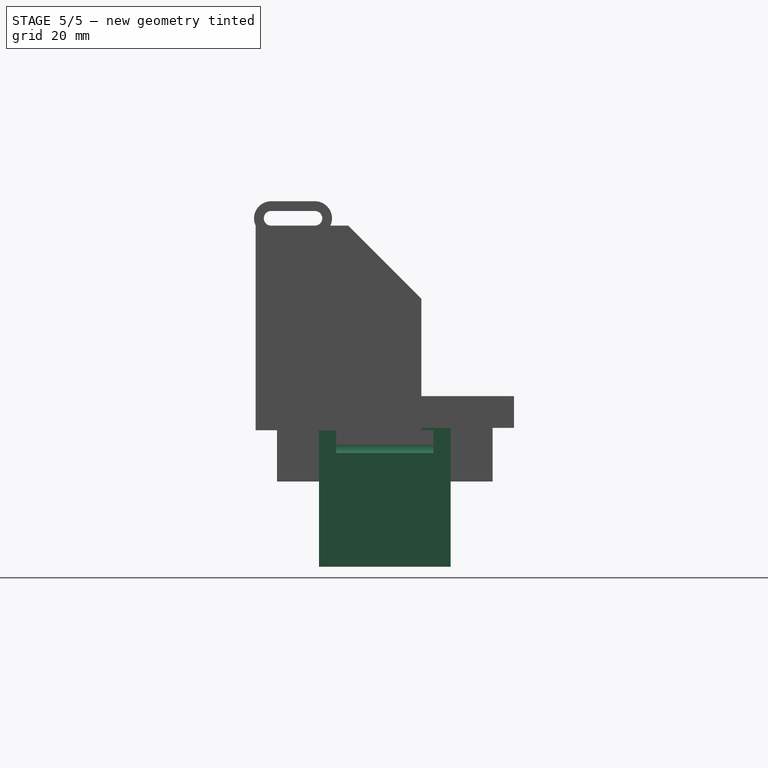
[diagram: stage 5 of 5 — right view after this stage's code; geometry added in this stage tinted green]
FEATURE [Sketcher::SketchObject] Sketch005
  FullyConstrained = true
  MapMode = 5
  Placement = pos=(0,0,0) rot=(1,0,0;1.5708rad)
  Support = -> [XZ_Plane003]
  sketch-geometry (12):
    g0: Circle CenterX=0 CenterY=0 CenterZ=0 NormalX=0 NormalY=0 NormalZ=1 AngleXU=0 Radius=2.6
    g1: Circle CenterX=-20 CenterY=0 CenterZ=0 NormalX=0 NormalY=0 NormalZ=1 AngleXU=0 Radius=2.6
    g2: ArcOfCircle CenterX=-40 CenterY=0 CenterZ=0 NormalX=0 NormalY=0 NormalZ=1 AngleXU=0 Radius=2.6 StartAngle=4.71239 EndAngle=7.85398
    g3: ArcOfCircle CenterX=-60 CenterY=0 CenterZ=0 NormalX=0 NormalY=0 NormalZ=1 AngleXU=0 Radius=2.6 StartAngle=1.5708 EndAngle=4.71239
    g4: LineSegment StartX=-40 StartY=2.6 StartZ=0 EndX=-60 EndY=2.6 EndZ=0
    g5: LineSegment StartX=-60 StartY=-2.6 StartZ=0 EndX=-40 EndY=-2.6 EndZ=0
    g6: Circle CenterX=0 CenterY=-20 CenterZ=0 NormalX=0 NormalY=0 NormalZ=1 AngleXU=0 Radius=2.6
    g7: Circle CenterX=-20 CenterY=-20 CenterZ=0 NormalX=0 NormalY=0 NormalZ=1 AngleXU=0 Radius=2.6
    g8: LineSegment StartX=-67 StartY=5 StartZ=0 EndX=5 EndY=5 EndZ=0
    g9: LineSegment StartX=5 StartY=5 StartZ=0 EndX=5 EndY=-25 EndZ=0
    g10: LineSegment StartX=5 StartY=-25 StartZ=0 EndX=-67 EndY=-25 EndZ=0
    g11: LineSegment StartX=-67 StartY=-25 StartZ=0 EndX=-67 EndY=5 EndZ=0
  constraints (33):
    c: Tangent(g2,g4) = -1.5708
    c: Tangent(g4,g3) = -1.5708
    c: Tangent(g3,g5) = -1.5708
    c: Tangent(g5,g2) = -1.5708
    c: Equal(g2,g3)
    c: Coincident(g0,g-1)
    c: PointOnObject(g1,g-1)
    c: Diameter(g0) = 5.2
    c: Equal(g0,g1)
    c: Equal(g2,g1)
    c: PointOnObject(g2,g-1)
    c: PointOnObject(g3,g-1)
    c: Equal(g1,g7)
    c: Equal(g7,g6)
    c: PointOnObject(g6,g-2)
    c: Horizontal(g7,g6)
    c: DistanceY(g6,g0) = 20
    c: Vertical(g1,g7)
    c: DistanceX(g1,g0) = 20
    c: DistanceX(g3,g2) = 20
    c: DistanceX(g2,g1) = 20
    c: Coincident(g8,g9)
    c: Coincident(g9,g10)
    c: Coincident(g10,g11)
    c: Coincident(g11,g8)
    c: Horizontal(g8)
    c: Horizontal(g10)
    c: Vertical(g9)
    c: Vertical(g11)
    c: DistanceX(g0,g8) = 5
    c: DistanceY(g0,g8) = 5
    c: DistanceX(g8,g3) = 7
    c: DistanceY(g9,g6) = 5
FEATURE [PartDesign::Pad] Pad002
  Direction = (0,-1,2e-16)
  Length = 27
  Length2 = 100
  Midplane = true
  Placement = pos=(0,0,0) rot=(1,0,0;1.5708rad)
  Profile = -> Sketch005
  Type = 0
FEATURE [Sketcher::SketchObject] Sketch006
  ExternalGeometry = -> [Pad002]
  FullyConstrained = true
  MapMode = 5
  Placement = pos=(0,0,0) rot=(1,0,0;1.5708rad)
  Support = -> [XZ_Plane003]
  sketch-geometry (4):
    g0: LineSegment StartX=-62 StartY=5 StartZ=0 EndX=5 EndY=5 EndZ=0
    g1: LineSegment StartX=5 StartY=5 StartZ=0 EndX=5 EndY=-25 EndZ=0
    g2: LineSegment StartX=5 StartY=-25 StartZ=0 EndX=-62 EndY=-25 EndZ=0
    g3: LineSegment StartX=-62 StartY=-25 StartZ=0 EndX=-62 EndY=5 EndZ=0
  constraints (11):
    c: Coincident(g0,g1)
    c: Coincident(g1,g2)
    c: Coincident(g2,g3)
    c: Coincident(g3,g0)
    c: Horizontal(g0)
    c: Horizontal(g2)
    c: Vertical(g1)
    c: Vertical(g3)
    c: DistanceX(g-3,g0) = 5
    c: Horizontal(g2,g-3)
    c: Coincident(g0,g-4)
FEATURE [PartDesign::Pocket] Pocket002
  BaseFeature = -> Pad002
  Length = 20
  Length2 = 100
  Midplane = true
  Placement = pos=(0,0,0) rot=(1,0,0;1.5708rad)
  Profile = -> Sketch006
  Type = 0
FEATURE [Sketcher::SketchObject] Sketch010
  ExternalGeometry = -> [Hole001,Sketch009]
  FullyConstrained = true
  MapMode = 5
  Placement = pos=(-67.5732,0,0) rot=(0.57735,0.57735,0.57735;2.0944rad)
  Support = -> [Hole001]
  expr: Constraints[39] = .Constraints.nut_width
  sketch-geometry (14):
    g0: LineSegment StartX=-12.6038 StartY=2.225 StartZ=0 EndX=-12.6038 EndY=-2.225 EndZ=0
    g1: LineSegment StartX=-12.6038 StartY=-2.225 StartZ=0 EndX=-8.75 EndY=-4.45 EndZ=0
    g2: LineSegment StartX=-8.75 StartY=-4.45 StartZ=0 EndX=-4.89619 EndY=-2.225 EndZ=0
    g3: LineSegment StartX=-4.89619 StartY=-2.225 StartZ=0 EndX=-4.89619 EndY=2.225 EndZ=0
    g4: LineSegment StartX=-4.89619 StartY=2.225 StartZ=0 EndX=-8.75 EndY=4.45 EndZ=0
    g5: LineSegment StartX=-8.75 StartY=4.45 StartZ=0 EndX=-12.6038 EndY=2.225 EndZ=0
    g6: Circle CenterX=-8.75 CenterY=0 CenterZ=0 NormalX=0 NormalY=0 NormalZ=1 AngleXU=0 Radius=4.45
    g7: LineSegment StartX=8.75 StartY=4.45 StartZ=0 EndX=4.89619 EndY=2.225 EndZ=0
    g8: LineSegment StartX=4.89619 StartY=2.225 StartZ=0 EndX=4.89619 EndY=-2.225 EndZ=0
    g9: LineSegment StartX=4.89619 StartY=-2.225 StartZ=0 EndX=8.75 EndY=-4.45 EndZ=0
    g10: LineSegment StartX=8.75 StartY=-4.45 StartZ=0 EndX=12.6038 EndY=-2.225 EndZ=0
    g11: LineSegment StartX=12.6038 StartY=-2.225 StartZ=0 EndX=12.6038 EndY=2.225 EndZ=0
    g12: LineSegment StartX=12.6038 StartY=2.225 StartZ=0 EndX=8.75 EndY=4.45 EndZ=0
    g13: Circle CenterX=8.75 CenterY=0 CenterZ=0 NormalX=0 NormalY=0 NormalZ=1 AngleXU=0 Radius=4.45
  constraints (32):
    c: Coincident(g0,g1)
    c: Coincident(g1,g2)
    c: Coincident(g2,g3)
    c: Coincident(g3,g4)
    c: Coincident(g4,g5)
    c: Coincident(g5,g0)
    c: Equal(g0, g1-g5) x5
    c: PointOnObject(g0,g6)
    c: PointOnObject(g1,g6)
    c: PointOnObject(g2,g6)
    c: PointOnObject(g3,g6)
    c: PointOnObject(g4,g6)
    c: PointOnObject(g5,g6)
    c: DistanceY(g1,g4) = 8.9  'nut_width'
    c: Coincident(g6,g-3)
    c: Vertical(g4,g1)
    c: Coincident(g7,g8)
    c: Coincident(g8,g9)
    c: Coincident(g9,g10)
    c: Coincident(g10,g11)
    c: Coincident(g11,g12)
    c: Coincident(g12,g7)
    c: Equal(g7, g8-g12) x5
    c: PointOnObject(g7,g13)
    c: PointOnObject(g8,g13)
    c: PointOnObject(g9,g13)
    c: PointOnObject(g10,g13)
    c: PointOnObject(g11,g13)
    c: PointOnObject(g12,g13)
    c: Coincident(g13,g-4)
    c: Vertical(g7,g9)
    c: DistanceY(g9,g7) = 8.9
FEATURE [PartDesign::Pocket] Pocket004
  BaseFeature = -> Hole001
  Length = 2
  Length2 = 100
  Profile = -> Sketch010
  Type = 0
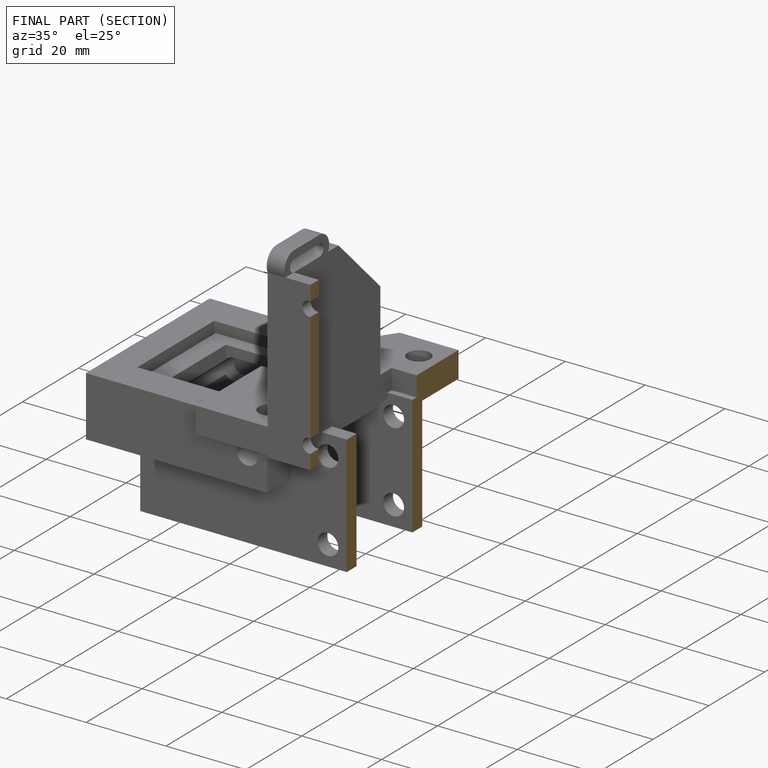
[diagram: finished part — half-section view (interior)]
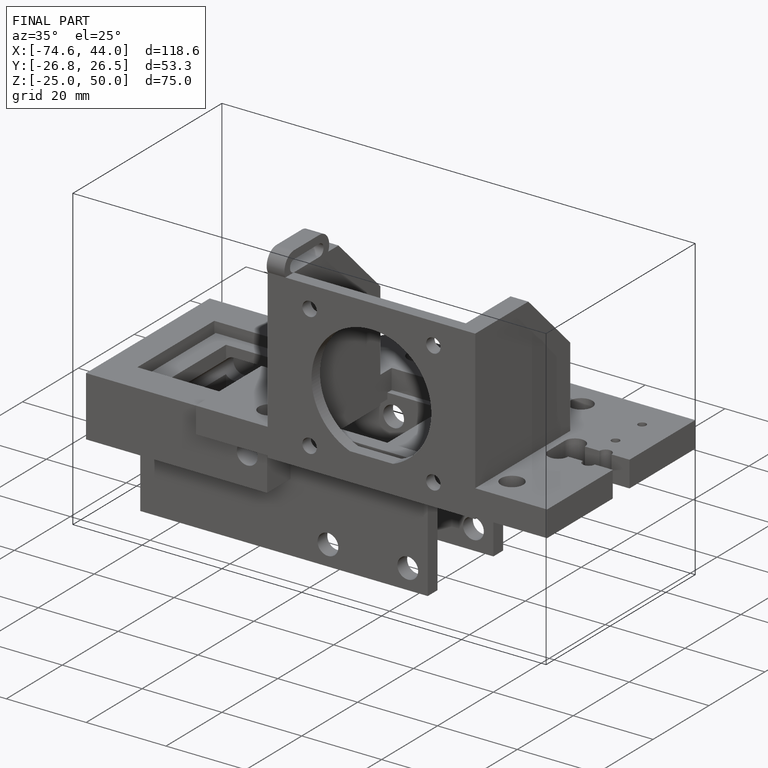
[diagram: finished part — iso view with bounding-box wireframe]
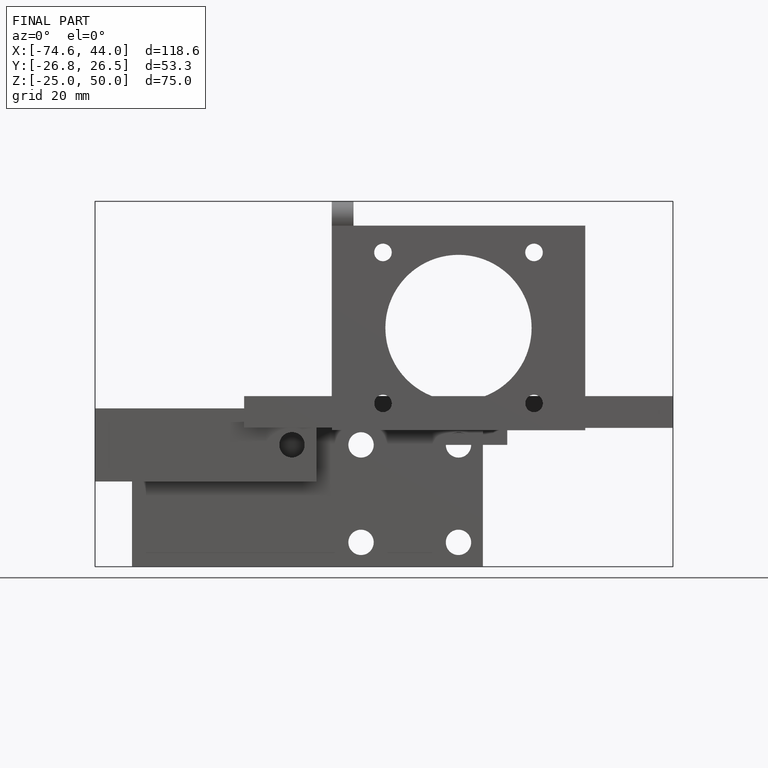
[diagram: finished part — front view with bounding-box wireframe]
